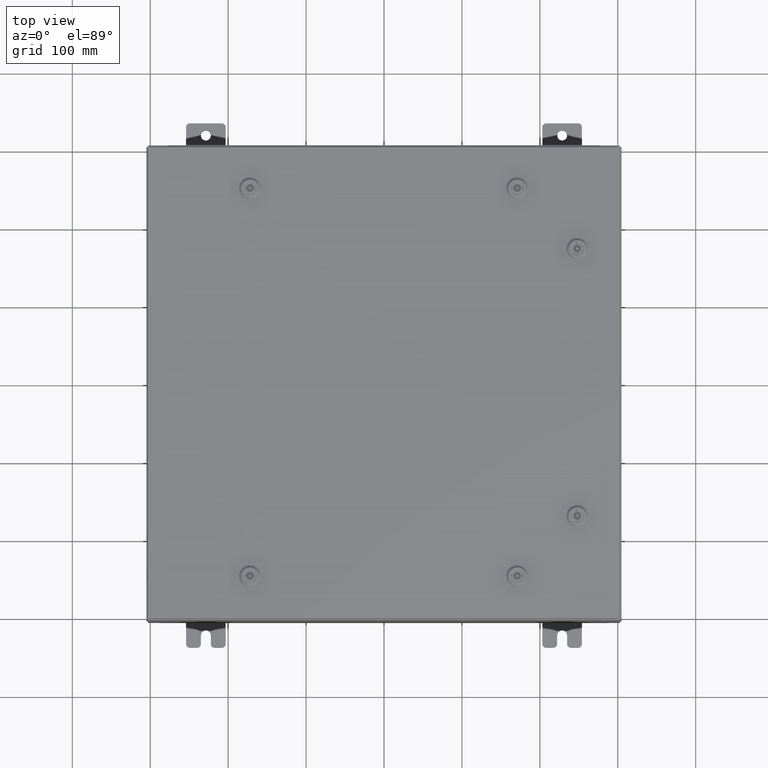
[diagram: clean part render]
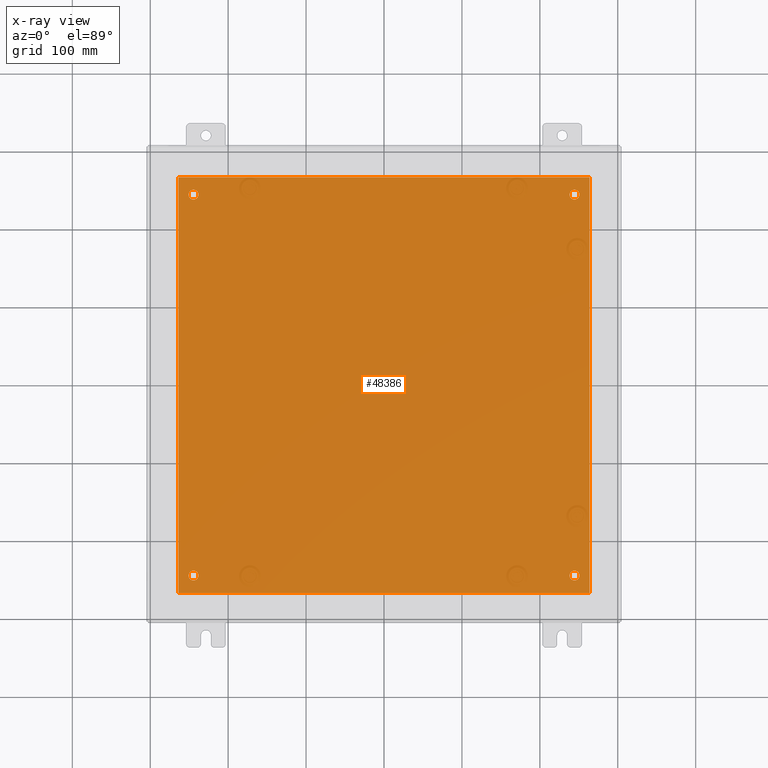
[diagram: x-ray — body ghosted, one internal face saturated and labeled with its STEP entity id]
A machine part, top view, then the same camera in x-ray: the body is ghosted and one INTERNAL B-rep face — a face not visible from any outside direction — is saturated and labeled: STEP entity #48386.
In plain terms, the highlighted planar face has unit normal (0, 0, -1).
Its self-contained STEP definition (entity closure, byte-faithful):
#171 = CIRCLE ( 'NONE', #53322, 0.2499999999999987000 ) ;
#713 = EDGE_CURVE ( 'NONE', #25727, #21129, #51014, .T. ) ;
#1542 = CARTESIAN_POINT ( 'NONE',  ( -10.50000000000000200, -10.50000000000000000, -0.1039999999999999800 ) ) ;
#1728 = AXIS2_PLACEMENT_3D ( 'NONE', #20639, #15904, #50204 ) ;
#1834 = EDGE_LOOP ( 'NONE', ( #25708, #44723 ) ) ;
#2898 = CARTESIAN_POINT ( 'NONE',  ( 9.875000000000003600, 9.625000000000001800, -0.1039999999999999800 ) ) ;
#4396 = ORIENTED_EDGE ( 'NONE', *, *, #713, .T. ) ;
#4898 = EDGE_LOOP ( 'NONE', ( #4396, #24666 ) ) ;
#4998 = FACE_BOUND ( 'NONE', #33033, .T. ) ;
#5572 = CARTESIAN_POINT ( 'NONE',  ( -9.375000000000005300, -9.625000000000001800, -0.1039999999999999800 ) ) ;
#5995 = EDGE_CURVE ( 'NONE', #51644, #23548, #60692, .T. ) ;
#5998 = PLANE ( 'NONE',  #1728 ) ;
#6553 = EDGE_LOOP ( 'NONE', ( #39712, #53453, #36136, #30992 ) ) ;
#7033 = AXIS2_PLACEMENT_3D ( 'NONE', #54859, #25515, #59738 ) ;
#8855 = CARTESIAN_POINT ( 'NONE',  ( -9.625000000000005300, -9.625000000000001800, -0.1039999999999999800 ) ) ;
#10312 = EDGE_CURVE ( 'NONE', #10395, #15913, #15635, .T. ) ;
#10395 = VERTEX_POINT ( 'NONE', #33379 ) ;
#12309 = DIRECTION ( 'NONE',  ( 0.0000000000000000000, 1.000000000000000000, 0.0000000000000000000 ) ) ;
#13552 = VERTEX_POINT ( 'NONE', #60880 ) ;
#13704 = CARTESIAN_POINT ( 'NONE',  ( -9.625000000000005300, 9.625000000000001800, -0.1039999999999999800 ) ) ;
#13810 = DIRECTION ( 'NONE',  ( -1.000000000000000000, 0.0000000000000000000, 0.0000000000000000000 ) ) ;
#15146 = VERTEX_POINT ( 'NONE', #33808 ) ;
#15635 = CIRCLE ( 'NONE', #58725, 0.2499999999999987000 ) ;
#15904 = DIRECTION ( 'NONE',  ( 0.0000000000000000000, 0.0000000000000000000, -1.000000000000000000 ) ) ;
#15913 = VERTEX_POINT ( 'NONE', #23511 ) ;
#15941 = LINE ( 'NONE', #51557, #40496 ) ;
#15980 = CARTESIAN_POINT ( 'NONE',  ( -9.625000000000005300, -9.625000000000001800, -0.1039999999999999800 ) ) ;
#16813 = VECTOR ( 'NONE', #30973, 39.37007874015748100 ) ;
#17782 = VERTEX_POINT ( 'NONE', #55455 ) ;
#17874 = CIRCLE ( 'NONE', #46709, 0.2499999999999976100 ) ;
#18668 = DIRECTION ( 'NONE',  ( -1.000000000000000000, 0.0000000000000000000, 0.0000000000000000000 ) ) ;
#19455 = ORIENTED_EDGE ( 'NONE', *, *, #48096, .T. ) ;
#20639 = CARTESIAN_POINT ( 'NONE',  ( 0.0000000000000000000, 0.0000000000000000000, -0.1039999999999999800 ) ) ;
#20943 = DIRECTION ( 'NONE',  ( -1.000000000000000000, 0.0000000000000000000, 0.0000000000000000000 ) ) ;
#21129 = VERTEX_POINT ( 'NONE', #28856 ) ;
#22143 = AXIS2_PLACEMENT_3D ( 'NONE', #27714, #45052, #29596 ) ;
#22241 = DIRECTION ( 'NONE',  ( -0.0000000000000000000, -0.0000000000000000000, 1.000000000000000000 ) ) ;
#22331 = CARTESIAN_POINT ( 'NONE',  ( 9.625000000000005300, -9.625000000000001800, -0.1039999999999999800 ) ) ;
#22474 = CIRCLE ( 'NONE', #47524, 0.2499999999999987000 ) ;
#23511 = CARTESIAN_POINT ( 'NONE',  ( -9.875000000000005300, 9.625000000000001800, -0.1039999999999999800 ) ) ;
#23519 = CARTESIAN_POINT ( 'NONE',  ( -9.625000000000005300, 9.625000000000001800, -0.1039999999999999800 ) ) ;
#23548 = VERTEX_POINT ( 'NONE', #2898 ) ;
#24666 = ORIENTED_EDGE ( 'NONE', *, *, #61666, .T. ) ;
#25371 = CIRCLE ( 'NONE', #43072, 0.2499999999999987000 ) ;
#25515 = DIRECTION ( 'NONE',  ( -0.0000000000000000000, -0.0000000000000000000, 1.000000000000000000 ) ) ;
#25708 = ORIENTED_EDGE ( 'NONE', *, *, #30263, .T. ) ;
#25727 = VERTEX_POINT ( 'NONE', #27795 ) ;
#25886 = ORIENTED_EDGE ( 'NONE', *, *, #61869, .T. ) ;
#26969 = EDGE_CURVE ( 'NONE', #13552, #55663, #43170, .T. ) ;
#27252 = DIRECTION ( 'NONE',  ( -1.000000000000000000, 0.0000000000000000000, 0.0000000000000000000 ) ) ;
#27714 = CARTESIAN_POINT ( 'NONE',  ( 9.625000000000005300, -9.625000000000001800, -0.1039999999999999800 ) ) ;
#27795 = CARTESIAN_POINT ( 'NONE',  ( 9.875000000000003600, -9.625000000000001800, -0.1039999999999999800 ) ) ;
#28469 = DIRECTION ( 'NONE',  ( -1.000000000000000000, 0.0000000000000000000, 0.0000000000000000000 ) ) ;
#28856 = CARTESIAN_POINT ( 'NONE',  ( 9.375000000000007100, -9.625000000000001800, -0.1039999999999999800 ) ) ;
#29048 = DIRECTION ( 'NONE',  ( -1.000000000000000000, -0.0000000000000000000, -0.0000000000000000000 ) ) ;
#29596 = DIRECTION ( 'NONE',  ( -1.000000000000000000, 0.0000000000000000000, 0.0000000000000000000 ) ) ;
#30263 = EDGE_CURVE ( 'NONE', #61383, #15146, #25371, .T. ) ;
#30973 = DIRECTION ( 'NONE',  ( 1.000000000000000000, 0.0000000000000000000, 0.0000000000000000000 ) ) ;
#30992 = ORIENTED_EDGE ( 'NONE', *, *, #55477, .F. ) ;
#32491 = LINE ( 'NONE', #63267, #48607 ) ;
#32855 = CARTESIAN_POINT ( 'NONE',  ( 9.375000000000007100, 9.625000000000001800, -0.1039999999999999800 ) ) ;
#33033 = EDGE_LOOP ( 'NONE', ( #39194, #25886 ) ) ;
#33379 = CARTESIAN_POINT ( 'NONE',  ( -9.375000000000005300, 9.625000000000001800, -0.1039999999999999800 ) ) ;
#33438 = EDGE_CURVE ( 'NONE', #55663, #62399, #54391, .T. ) ;
#33808 = CARTESIAN_POINT ( 'NONE',  ( -9.875000000000005300, -9.625000000000001800, -0.1039999999999999800 ) ) ;
#34876 = EDGE_LOOP ( 'NONE', ( #19455, #52338 ) ) ;
#36136 = ORIENTED_EDGE ( 'NONE', *, *, #51262, .F. ) ;
#37620 = CARTESIAN_POINT ( 'NONE',  ( -10.38299999999999900, -10.50000000000000000, -0.1040000000000031300 ) ) ;
#39194 = ORIENTED_EDGE ( 'NONE', *, *, #10312, .T. ) ;
#39620 = EDGE_CURVE ( 'NONE', #15146, #61383, #22474, .T. ) ;
#39712 = ORIENTED_EDGE ( 'NONE', *, *, #33438, .F. ) ;
#40496 = VECTOR ( 'NONE', #12309, 39.37007874015748100 ) ;
#42423 = DIRECTION ( 'NONE',  ( 0.0000000000000000000, -1.000000000000000000, 0.0000000000000000000 ) ) ;
#42610 = FACE_OUTER_BOUND ( 'NONE', #6553, .T. ) ;
#43072 = AXIS2_PLACEMENT_3D ( 'NONE', #15980, #50287, #20943 ) ;
#43170 = LINE ( 'NONE', #52311, #44694 ) ;
#43172 = DIRECTION ( 'NONE',  ( -0.0000000000000000000, -0.0000000000000000000, 1.000000000000000000 ) ) ;
#43630 = AXIS2_PLACEMENT_3D ( 'NONE', #51598, #22241, #56485 ) ;
#44148 = FACE_BOUND ( 'NONE', #34876, .T. ) ;
#44694 = VECTOR ( 'NONE', #42423, 39.37007874015748100 ) ;
#44723 = ORIENTED_EDGE ( 'NONE', *, *, #39620, .T. ) ;
#45052 = DIRECTION ( 'NONE',  ( -0.0000000000000000000, -0.0000000000000000000, 1.000000000000000000 ) ) ;
#46709 = AXIS2_PLACEMENT_3D ( 'NONE', #22331, #56559, #27252 ) ;
#47524 = AXIS2_PLACEMENT_3D ( 'NONE', #8855, #43172, #13810 ) ;
#48007 = DIRECTION ( 'NONE',  ( -0.0000000000000000000, -0.0000000000000000000, 1.000000000000000000 ) ) ;
#48096 = EDGE_CURVE ( 'NONE', #23548, #51644, #50316, .T. ) ;
#48386 = ADVANCED_FACE ( 'NONE', ( #57181, #55635, #44148, #4998, #42610 ), #5998, .T. ) ;
#48607 = VECTOR ( 'NONE', #29048, 39.37007874015748100 ) ;
#50204 = DIRECTION ( 'NONE',  ( -1.000000000000000000, 0.0000000000000000000, -0.0000000000000000000 ) ) ;
#50287 = DIRECTION ( 'NONE',  ( -0.0000000000000000000, -0.0000000000000000000, 1.000000000000000000 ) ) ;
#50316 = CIRCLE ( 'NONE', #43630, 0.2499999999999976100 ) ;
#51014 = CIRCLE ( 'NONE', #22143, 0.2499999999999976100 ) ;
#51262 = EDGE_CURVE ( 'NONE', #17782, #13552, #32491, .T. ) ;
#51557 = CARTESIAN_POINT ( 'NONE',  ( 10.38300000000000100, -10.50000000000000200, -0.1040000000000009100 ) ) ;
#51598 = CARTESIAN_POINT ( 'NONE',  ( 9.625000000000005300, 9.625000000000001800, -0.1039999999999999800 ) ) ;
#51644 = VERTEX_POINT ( 'NONE', #32855 ) ;
#52311 = CARTESIAN_POINT ( 'NONE',  ( -10.38299999999999900, 10.50000000000000400, -0.1040000000000031300 ) ) ;
#52338 = ORIENTED_EDGE ( 'NONE', *, *, #5995, .T. ) ;
#53322 = AXIS2_PLACEMENT_3D ( 'NONE', #13704, #48007, #18668 ) ;
#53453 = ORIENTED_EDGE ( 'NONE', *, *, #26969, .F. ) ;
#54391 = LINE ( 'NONE', #1542, #16813 ) ;
#54859 = CARTESIAN_POINT ( 'NONE',  ( 9.625000000000005300, 9.625000000000001800, -0.1039999999999999800 ) ) ;
#55279 = CARTESIAN_POINT ( 'NONE',  ( 10.38299999999999900, -10.50000000000000000, -0.1039999999999999800 ) ) ;
#55455 = CARTESIAN_POINT ( 'NONE',  ( 10.38300000000000100, 10.50000000000000200, -0.1039999999999999800 ) ) ;
#55477 = EDGE_CURVE ( 'NONE', #62399, #17782, #15941, .T. ) ;
#55635 = FACE_BOUND ( 'NONE', #4898, .T. ) ;
#55663 = VERTEX_POINT ( 'NONE', #37620 ) ;
#56485 = DIRECTION ( 'NONE',  ( -1.000000000000000000, 0.0000000000000000000, 0.0000000000000000000 ) ) ;
#56559 = DIRECTION ( 'NONE',  ( -0.0000000000000000000, -0.0000000000000000000, 1.000000000000000000 ) ) ;
#57181 = FACE_BOUND ( 'NONE', #1834, .T. ) ;
#57788 = DIRECTION ( 'NONE',  ( -0.0000000000000000000, -0.0000000000000000000, 1.000000000000000000 ) ) ;
#58725 = AXIS2_PLACEMENT_3D ( 'NONE', #23519, #57788, #28469 ) ;
#59738 = DIRECTION ( 'NONE',  ( -1.000000000000000000, 0.0000000000000000000, 0.0000000000000000000 ) ) ;
#60692 = CIRCLE ( 'NONE', #7033, 0.2499999999999976100 ) ;
#60880 = CARTESIAN_POINT ( 'NONE',  ( -10.38299999999999900, 10.50000000000000400, -0.1040000000000031300 ) ) ;
#61383 = VERTEX_POINT ( 'NONE', #5572 ) ;
#61666 = EDGE_CURVE ( 'NONE', #21129, #25727, #17874, .T. ) ;
#61869 = EDGE_CURVE ( 'NONE', #15913, #10395, #171, .T. ) ;
#62399 = VERTEX_POINT ( 'NONE', #55279 ) ;
#63267 = CARTESIAN_POINT ( 'NONE',  ( -10.50000000000000000, 10.50000000000000200, -0.1039999999999999800 ) ) ;